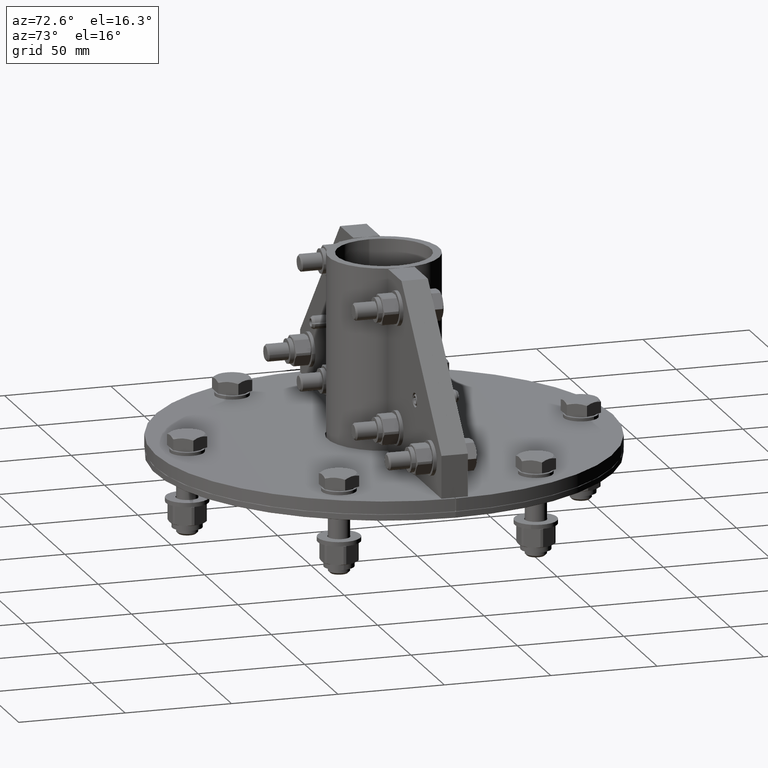
[diagram: clean part render]
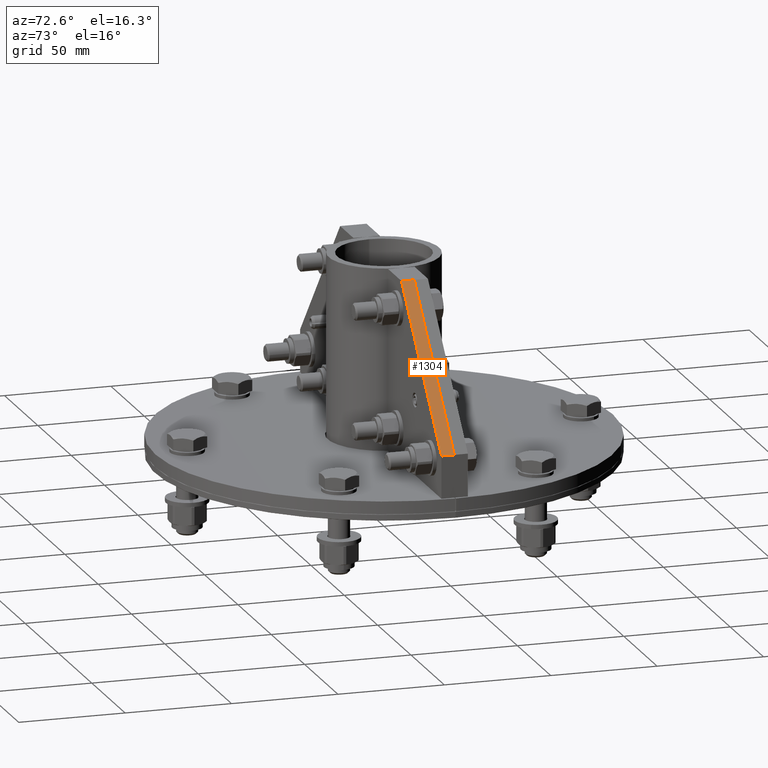
[diagram: same view with one face highlighted and labeled with its STEP entity id]
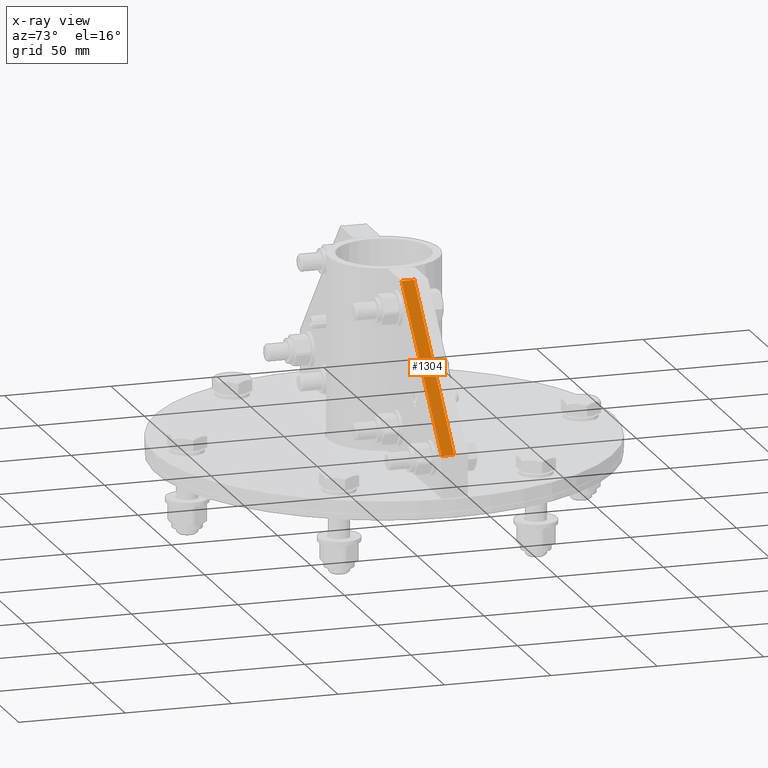
[diagram: x-ray of the same camera — body ghosted, the highlighted face saturated]
A machine part, auxiliary view. The second image highlights one B-rep face of the part: STEP entity #1304.
The next image is the same camera in x-ray: the body ghosted, the highlighted face saturated — about 0% of this face is hidden behind the body in this view.
In plain terms, the highlighted planar face has unit normal (0.7348, 0, 0.6783).
Its self-contained STEP definition (entity closure, byte-faithful):
#1213=CARTESIAN_POINT('',(20.0,85.0,-3.0));
#1214=VERTEX_POINT('',#1213);
#1221=CARTESIAN_POINT('',(80.0,20.000000000000014,-3.0));
#1222=VERTEX_POINT('',#1221);
#1223=CARTESIAN_POINT('',(80.0,20.000000000000014,-3.0));
#1224=DIRECTION('',(-0.678280102733066,0.734803444627488,0.0));
#1225=VECTOR('',#1224,88.459030064770658);
#1226=LINE('',#1223,#1225);
#1227=EDGE_CURVE('',#1222,#1214,#1226,.T.);
#1257=CARTESIAN_POINT('',(20.0,85.0,3.0));
#1258=VERTEX_POINT('',#1257);
#1265=CARTESIAN_POINT('',(20.0,85.0,3.0));
#1266=DIRECTION('',(0.0,0.0,-1.0));
#1267=VECTOR('',#1266,6.000000000000001);
#1268=LINE('',#1265,#1267);
#1269=EDGE_CURVE('',#1258,#1214,#1268,.T.);
#1281=CARTESIAN_POINT('',(20.0,85.0,0.0));
#1282=DIRECTION('',(0.734803444627488,0.678280102733066,0.0));
#1283=DIRECTION('',(0.0,0.0,-1.0));
#1284=AXIS2_PLACEMENT_3D('',#1281,#1282,#1283);
#1285=PLANE('',#1284);
#1286=CARTESIAN_POINT('',(80.0,20.000000000000014,3.0));
#1287=VERTEX_POINT('',#1286);
#1288=CARTESIAN_POINT('',(20.0,85.0,3.0));
#1289=DIRECTION('',(0.678280102733066,-0.734803444627488,0.0));
#1290=VECTOR('',#1289,88.459030064770658);
#1291=LINE('',#1288,#1290);
#1292=EDGE_CURVE('',#1258,#1287,#1291,.T.);
#1293=ORIENTED_EDGE('',*,*,#1292,.T.);
#1294=CARTESIAN_POINT('',(80.0,20.000000000000014,3.0));
#1295=DIRECTION('',(0.0,0.0,-1.0));
#1296=VECTOR('',#1295,6.000000000000001);
#1297=LINE('',#1294,#1296);
#1298=EDGE_CURVE('',#1287,#1222,#1297,.T.);
#1299=ORIENTED_EDGE('',*,*,#1298,.T.);
#1300=ORIENTED_EDGE('',*,*,#1227,.T.);
#1301=ORIENTED_EDGE('',*,*,#1269,.F.);
#1302=EDGE_LOOP('',(#1293,#1299,#1300,#1301));
#1303=FACE_OUTER_BOUND('',#1302,.T.);
#1304=ADVANCED_FACE('',(#1303),#1285,.T.);